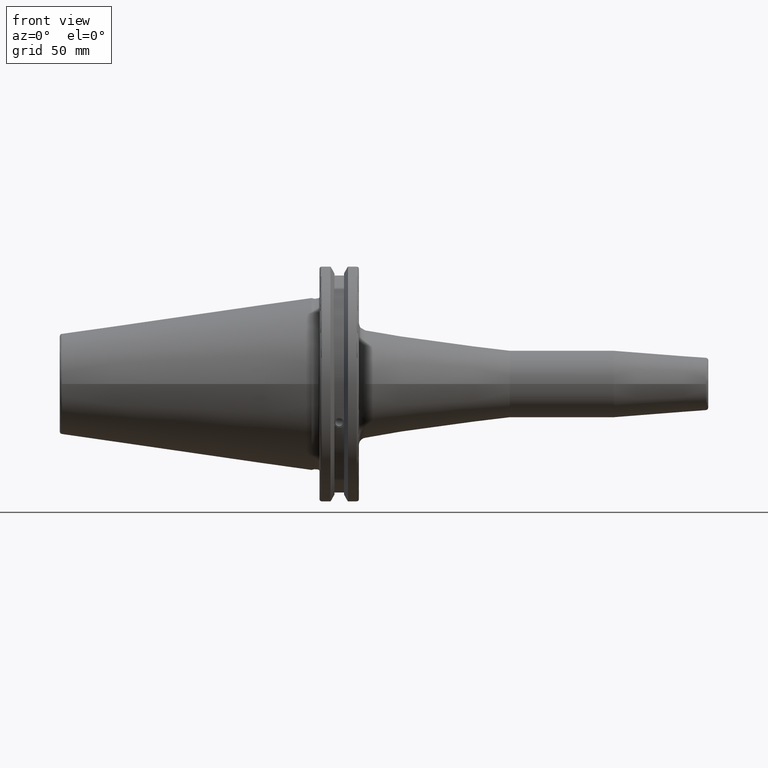
[diagram: clean part render]
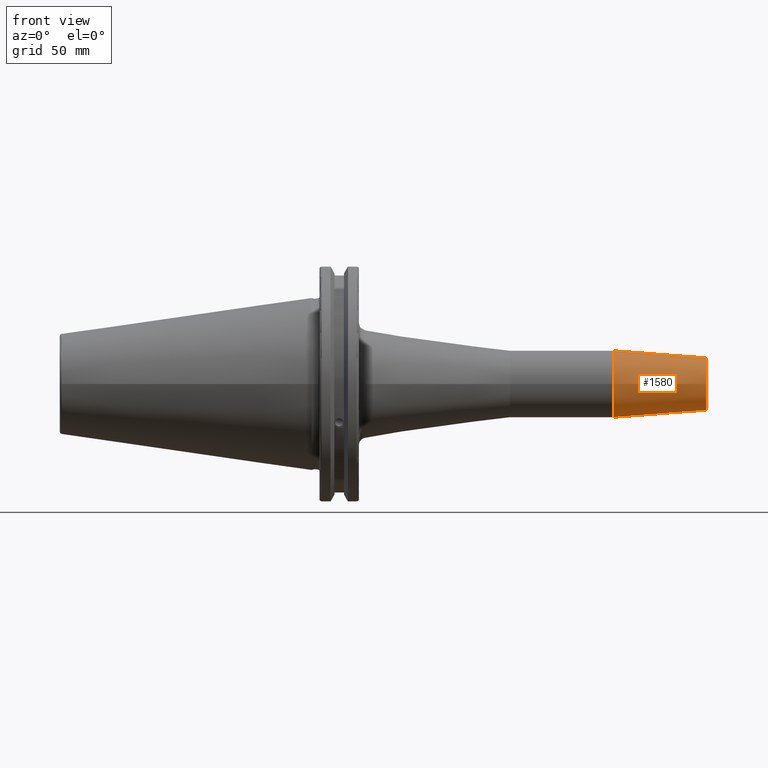
[diagram: same view with one face highlighted and labeled with its STEP entity id]
A machine part, front view. The second image highlights one B-rep face of the part: STEP entity #1580.
In plain terms, the highlighted conical surface has half-angle 4.5 deg.
Its self-contained STEP definition (entity closure, byte-faithful):
#181=FACE_OUTER_BOUND('',#275,.T.);
#275=EDGE_LOOP('',(#1112,#1113,#1114,#1115,#1116));
#384=LINE('',#2405,#483);
#483=VECTOR('',#1929,12.);
#588=CIRCLE('',#1711,10.5725268420749);
#589=CIRCLE('',#1712,10.5725268420749);
#590=CIRCLE('',#1714,13.5);
#675=VERTEX_POINT('',#2398);
#676=VERTEX_POINT('',#2400);
#677=VERTEX_POINT('',#2404);
#845=EDGE_CURVE('',#675,#676,#588,.T.);
#846=EDGE_CURVE('',#676,#675,#589,.T.);
#847=EDGE_CURVE('',#676,#677,#384,.T.);
#848=EDGE_CURVE('',#677,#677,#590,.T.);
#1112=ORIENTED_EDGE('',*,*,#846,.F.);
#1113=ORIENTED_EDGE('',*,*,#847,.T.);
#1114=ORIENTED_EDGE('',*,*,#848,.T.);
#1115=ORIENTED_EDGE('',*,*,#847,.F.);
#1116=ORIENTED_EDGE('',*,*,#845,.F.);
#1557=CONICAL_SURFACE('',#1713,12.,0.0785398163397447);
#1580=ADVANCED_FACE('',(#181),#1557,.T.);
#1711=AXIS2_PLACEMENT_3D('',#2401,#1923,#1924);
#1712=AXIS2_PLACEMENT_3D('',#2402,#1925,#1926);
#1713=AXIS2_PLACEMENT_3D('',#2403,#1927,#1928);
#1714=AXIS2_PLACEMENT_3D('',#2406,#1930,#1931);
#1923=DIRECTION('center_axis',(1.,0.,0.));
#1924=DIRECTION('ref_axis',(0.,-1.,3.06161699786838E-17));
#1925=DIRECTION('center_axis',(1.,0.,0.));
#1926=DIRECTION('ref_axis',(0.,-1.,3.06161699786838E-17));
#1927=DIRECTION('center_axis',(-1.,0.,0.));
#1928=DIRECTION('ref_axis',(0.,1.,0.));
#1929=DIRECTION('',(-0.996917333733128,-0.0784590957278448,-9.60846804471009E-18));
#1930=DIRECTION('center_axis',(1.,0.,0.));
#1931=DIRECTION('ref_axis',(0.,0.,-1.));
#2398=CARTESIAN_POINT('',(159.078459095728,-1.29476111560465E-15,10.5725268420749));
#2400=CARTESIAN_POINT('',(159.078459095728,-10.5725268420749,-1.29476111560465E-15));
#2401=CARTESIAN_POINT('Origin',(159.078459095728,0.,-1.61845139450582E-15));
#2402=CARTESIAN_POINT('Origin',(159.078459095728,0.,-1.61845139450582E-15));
#2403=CARTESIAN_POINT('Origin',(140.940692895738,0.,0.));
#2404=CARTESIAN_POINT('',(121.881385791476,-13.5,-1.65327317884893E-15));
#2405=CARTESIAN_POINT('',(140.940692895738,-12.,-1.46957615897682E-15));
#2406=CARTESIAN_POINT('Origin',(121.881385791476,0.,0.));